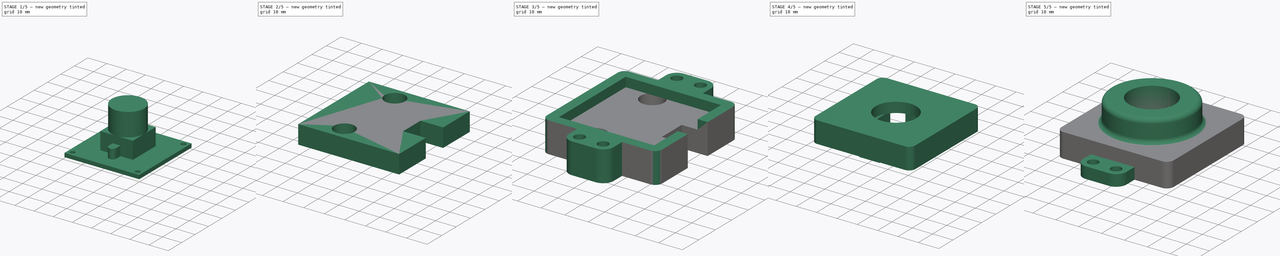
[diagram: build sequence overview — one tinted view per stage of 5, left to right]
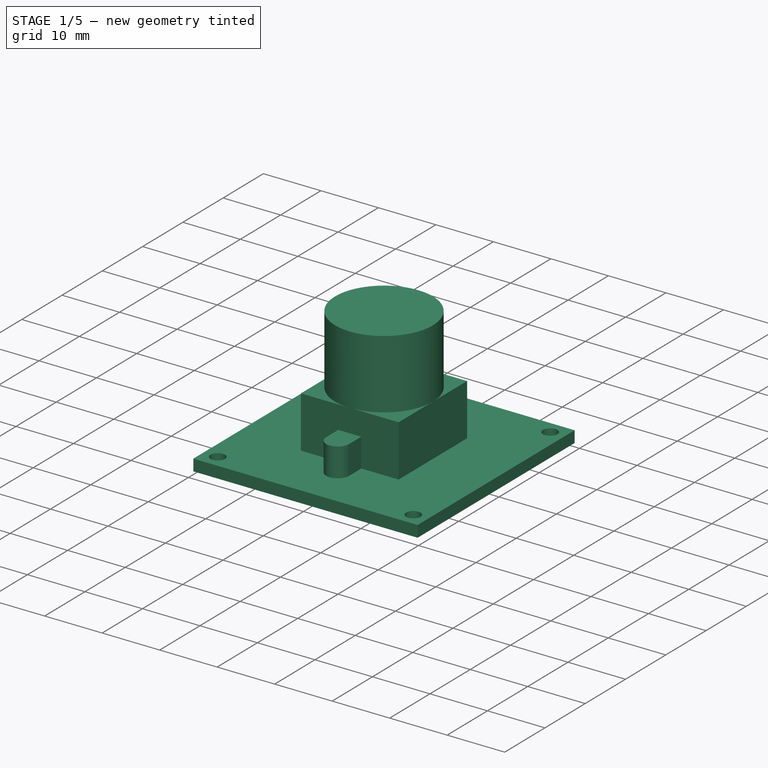
[diagram: stage 1 of 5 — iso view after this stage's code; geometry added in this stage tinted green]
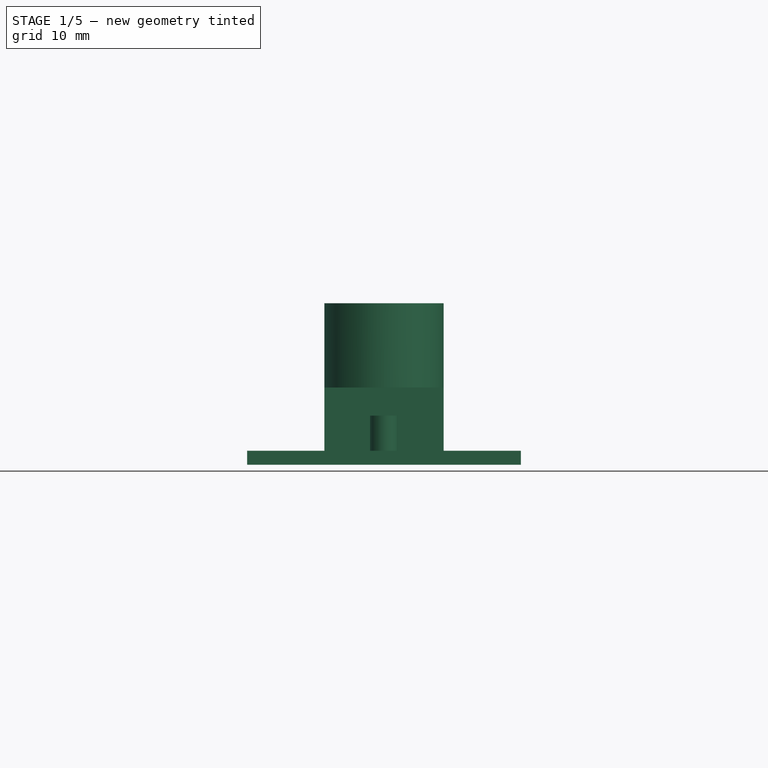
[diagram: stage 1 of 5 — front view after this stage's code; geometry added in this stage tinted green]
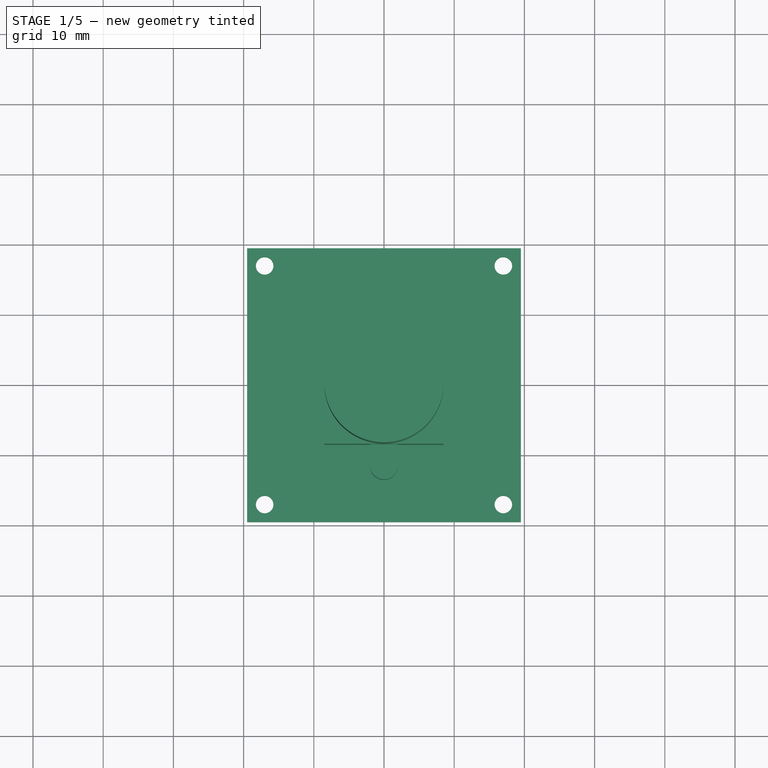
[diagram: stage 1 of 5 — top view after this stage's code; geometry added in this stage tinted green]
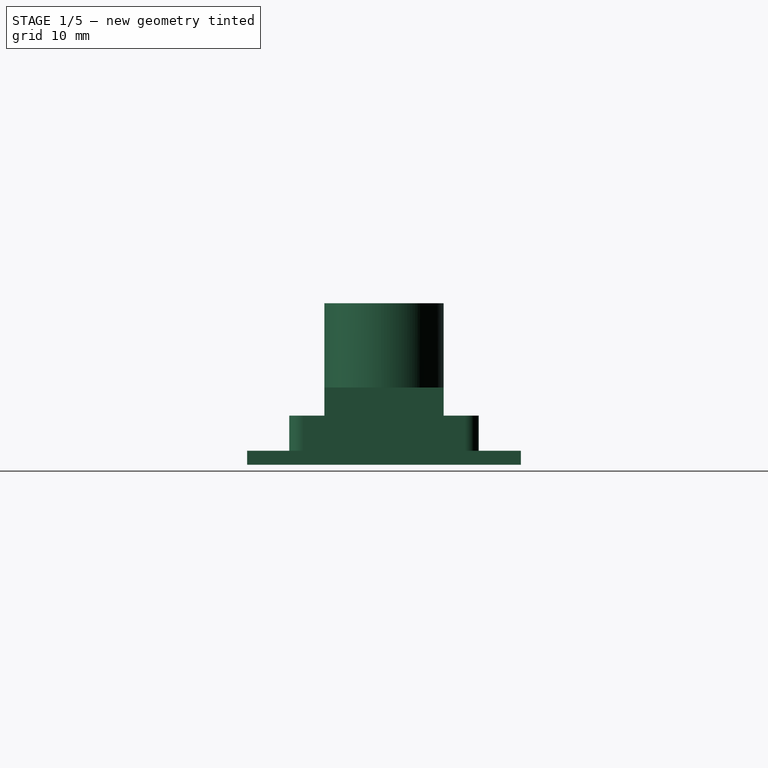
[diagram: stage 1 of 5 — right view after this stage's code; geometry added in this stage tinted green]
FCSTD DOCUMENT  (FreeCAD 1.1R39747 (Git))
Label: camera-mount
License: All rights reserved
LicenseURL: https://en.wikipedia.org/wiki/All_rights_reserved
objects: Sketcher::SketchObject×18, PartDesign::Pad×14, App::Point×7, PartDesign::Mirrored×6, Part::LocalCoordinateSystem×3, PartDesign::SubShapeBinder×3, PartDesign::Body×3, PartDesign::Revolution×1, PartDesign::SubtractivePipe×1, PartDesign::AdditivePipe×1, PartDesign::Pocket×1, PartDesign::MultiTransform×1, App::Part×1
note: 110 computed .brp shape members not serialized (recipe doc carries the construction recipe); baked Part::Feature solids carry a one-line shape summary decoded from their .brp
EXTERNAL_REF file=AssemblyWBAssembly.FCStd obj=Assembly

FEATURE [App::Point] Origin001
  Role = Origin
FEATURE [Sketcher::SketchObject] Sketch
  ArcFitTolerance = 1e-06
  AttachmentSupport = -> [XY_Plane]
  ExternalTypes = [0]
  FullyConstrained = true
  MakeInternals = false
  MapMode = 5
  sketch-geometry (14):
    g0: LineSegment StartX=-19.5 StartY=19.5 StartZ=0 EndX=-19.5 EndY=-19.5 EndZ=0
    g1: LineSegment StartX=-19.5 StartY=-19.5 StartZ=0 EndX=19.5 EndY=-19.5 EndZ=0
    g2: LineSegment StartX=19.5 StartY=-19.5 StartZ=0 EndX=19.5 EndY=19.5 EndZ=0
    g3: LineSegment StartX=19.5 StartY=19.5 StartZ=0 EndX=-19.5 EndY=19.5 EndZ=0
    g4: GeomPoint [constr] X=0 Y=0 Z=0
    g5: LineSegment [constr] StartX=-17 StartY=-17 StartZ=0 EndX=17 EndY=-17 EndZ=0
    g6: LineSegment [constr] StartX=17 StartY=-17 StartZ=0 EndX=17 EndY=17 EndZ=0
    g7: LineSegment [constr] StartX=17 StartY=17 StartZ=0 EndX=-17 EndY=17 EndZ=0
    g8: LineSegment [constr] StartX=-17 StartY=17 StartZ=0 EndX=-17 EndY=-17 EndZ=0
    g9: GeomPoint [constr] X=0 Y=0 Z=0
    g10: Circle CenterX=17 CenterY=17 CenterZ=0 NormalX=0 NormalY=0 NormalZ=1 AngleXU=0 Radius=1.25
    g11: Circle CenterX=17 CenterY=-17 CenterZ=0 NormalX=0 NormalY=0 NormalZ=1 AngleXU=0 Radius=1.25
    g12: Circle CenterX=-17 CenterY=-17 CenterZ=0 NormalX=0 NormalY=0 NormalZ=1 AngleXU=0 Radius=1.25
    g13: Circle CenterX=-17 CenterY=17 CenterZ=0 NormalX=0 NormalY=0 NormalZ=1 AngleXU=0 Radius=1.25
  constraints (32):
    c: Coincident(g0,g1)
    c: Coincident(g1,g2)
    c: Coincident(g2,g3)
    c: Coincident(g3,g0)
    c: Vertical(g0)
    c: Vertical(g2)
    c: Horizontal(g1)
    c: Horizontal(g3)
    c: Symmetric(g2,g0,g4)
    c: Distance(g0,g2) = 39
    c: Coincident(g4,g-1)
    c: Equal(g2,g1)
    c: Coincident(g5,g6)
    c: Coincident(g6,g7)
    c: Coincident(g7,g8)
    c: Coincident(g8,g5)
    c: Horizontal(g5)
    c: Horizontal(g7)
    c: Vertical(g6)
    c: Vertical(g8)
    c: Symmetric(g7,g5,g9)
    c: Coincident(g9,g4)
    c: DistanceY(g6,g6) = 34
    c: Equal(g7,g6)
    c: Diameter(g10) = 2.5
    c: Coincident(g10,g6)
    c: Coincident(g11,g5)
    c: Coincident(g12,g5)
    c: Coincident(g13,g7)
    c: Equal(g13,g12)
    c: Equal(g12,g11)
    c: Equal(g11,g10)
FEATURE [PartDesign::Pad] Pad
  Direction = (0,0,1)
  Length = 2
  Length2 = 10
  Profile = -> Sketch
  ReferenceAxis = -> Sketch [N_Axis]
  Refine = true
  Suppressed = false
  Type = 0
FEATURE [Sketcher::SketchObject] Sketch001
  ArcFitTolerance = 1e-06
  AttachmentSupport = -> [Pad]
  ExternalTypes = [0]
  FullyConstrained = true
  MakeInternals = false
  MapMode = 5
  Placement = pos=(0,0,2) rot=(0,0,1;0rad)
  sketch-geometry (5):
    g0: LineSegment StartX=-8.5 StartY=-8.5 StartZ=0 EndX=8.5 EndY=-8.5 EndZ=0
    g1: LineSegment StartX=8.5 StartY=-8.5 StartZ=0 EndX=8.5 EndY=8.5 EndZ=0
    g2: LineSegment StartX=8.5 StartY=8.5 StartZ=0 EndX=-8.5 EndY=8.5 EndZ=0
    g3: LineSegment StartX=-8.5 StartY=8.5 StartZ=0 EndX=-8.5 EndY=-8.5 EndZ=0
    g4: GeomPoint [constr] X=0 Y=0 Z=0
  constraints (12):
    c: Coincident(g0,g1)
    c: Coincident(g1,g2)
    c: Coincident(g2,g3)
    c: Coincident(g3,g0)
    c: Horizontal(g0)
    c: Horizontal(g2)
    c: Vertical(g1)
    c: Vertical(g3)
    c: Symmetric(g2,g0,g4)
    c: Coincident(g4,g-1)
    c: DistanceY(g1,g1) = 17
    c: Equal(g1,g0)
FEATURE [PartDesign::Pad] Pad001
  BaseFeature = -> Pad
  Direction = (0,0,1)
  Length = 9
  Length2 = 10
  Profile = -> Sketch001
  ReferenceAxis = -> Sketch001 [N_Axis]
  Refine = true
  Suppressed = false
  Type = 0
FEATURE [Sketcher::SketchObject] Sketch002
  ArcFitTolerance = 1e-06
  AttachmentSupport = -> [Pad001]
  ExternalGeometry = -> [Pad001]
  ExternalTypes = [0]
  FullyConstrained = true
  MakeInternals = false
  MapMode = 5
  Placement = pos=(0,0,2) rot=(0,0,1;0rad)
  sketch-geometry (6):
    g0: GeomPoint [constr] X=0 Y=-8.5 Z=0
    g1: LineSegment StartX=-2 StartY=-8.5 StartZ=0 EndX=2 EndY=-8.5 EndZ=0
    g2: LineSegment [constr] StartX=1.62e-14 StartY=-8.5 StartZ=0 EndX=1.62e-14 EndY=-13.5 EndZ=0
    g3: ArcOfCircle CenterX=4.25e-14 CenterY=-11.5 CenterZ=0 NormalX=0 NormalY=0 NormalZ=1 AngleXU=0 Radius=2 StartAngle=3.14159 EndAngle=6.28319
    g4: LineSegment StartX=-2 StartY=-11.5 StartZ=0 EndX=-2 EndY=-8.5 EndZ=0
    g5: LineSegment StartX=2 StartY=-11.5 StartZ=0 EndX=2 EndY=-8.5 EndZ=0
  constraints (16):
    c: Symmetric(g-3,g-3,g0)
    c: Horizontal(g1)
    c: Distance(g1,g1) = 4
    c: Distance(g2) = 5
    c: Symmetric(g1,g1,g2)
    c: Vertical(g2)
    c: PointOnObject(g2,g3)
    c: Horizontal(g3,g3)
    c: Horizontal(g3,g3)
    c: Vertical(g3,g1)
    c: Vertical(g3,g1)
    c: Coincident(g4,g3)
    c: Coincident(g4,g1)
    c: Coincident(g5,g3)
    c: Coincident(g5,g1)
    c: Symmetric(g-3,g-3,g2)
FEATURE [PartDesign::Pad] Pad002
  BaseFeature = -> Pad001
  Direction = (0,0,1)
  Length = 5
  Length2 = 10
  Profile = -> Sketch002
  ReferenceAxis = -> Sketch002 [N_Axis]
  Refine = true
  Suppressed = false
  Type = 0
FEATURE [PartDesign::Mirrored] Mirrored
  BaseFeature = -> Pad002
  MirrorPlane = -> Sketch002 [H_Axis]
  Originals = -> [Pad002]
  Refine = true
  Suppressed = false
  TransformMode = 0
FEATURE [Sketcher::SketchObject] Sketch003
  ArcFitTolerance = 1e-06
  AttachmentSupport = -> [Mirrored]
  ExternalGeometry = -> [Mirrored]
  ExternalTypes = [0]
  FullyConstrained = true
  MakeInternals = false
  MapMode = 5
  Placement = pos=(0,0,11) rot=(0,0,1;0rad)
  sketch-geometry (1):
    g0: Circle CenterX=4.265e-13 CenterY=0 CenterZ=0 NormalX=0 NormalY=0 NormalZ=1 AngleXU=0 Radius=8.5
  constraints (2):
    c: Coincident(g0,g-1)
    c: Tangent(g0,g-3)
FEATURE [PartDesign::Pad] Pad003
  BaseFeature = -> Mirrored
  Direction = (0,0,1)
  Length = 12
  Length2 = 10
  Profile = -> Sketch003
  ReferenceAxis = -> Sketch003 [N_Axis]
  Refine = true
  Suppressed = false
  Type = 0
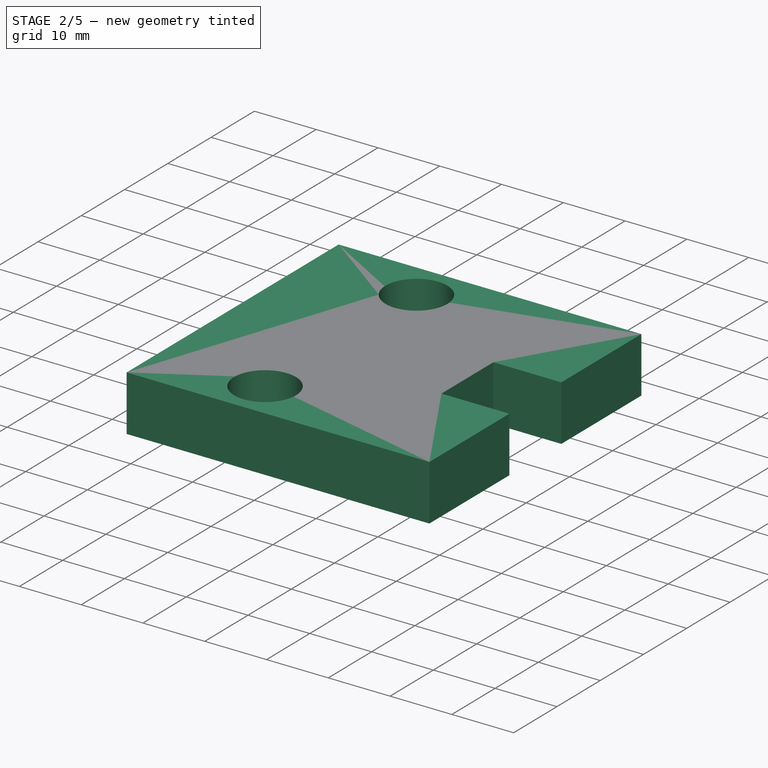
[diagram: stage 2 of 5 — iso view after this stage's code; geometry added in this stage tinted green]
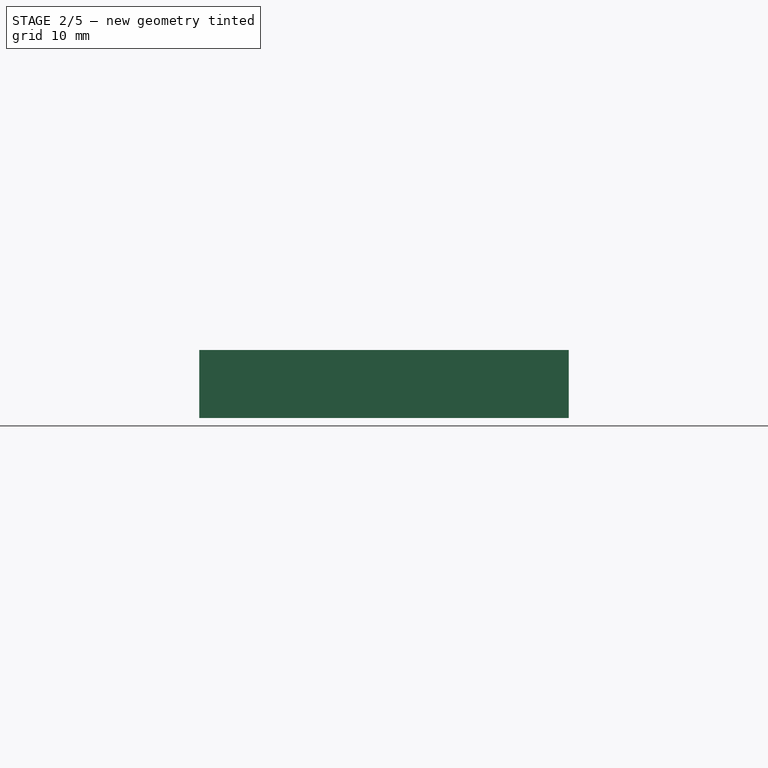
[diagram: stage 2 of 5 — front view after this stage's code; geometry added in this stage tinted green]
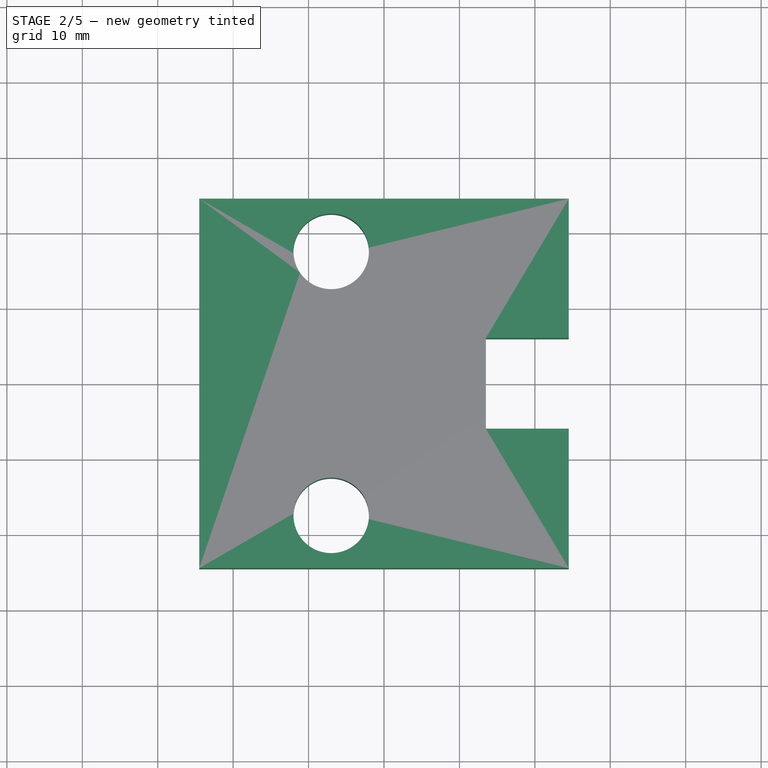
[diagram: stage 2 of 5 — top view after this stage's code; geometry added in this stage tinted green]
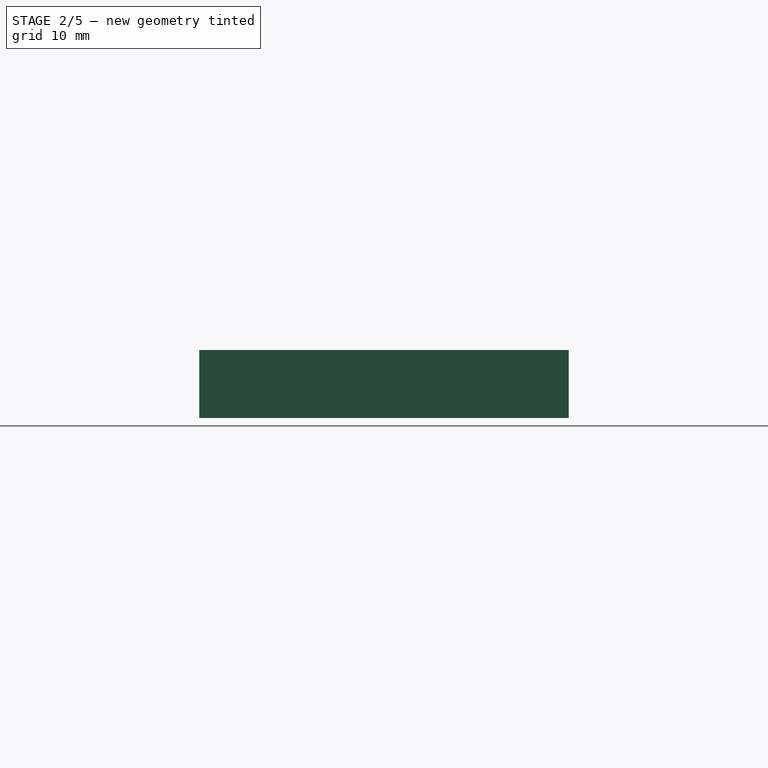
[diagram: stage 2 of 5 — right view after this stage's code; geometry added in this stage tinted green]
FEATURE [Sketcher::SketchObject] Sketch004
  ArcFitTolerance = 1e-06
  AttachmentSupport = -> [Pad003]
  ExternalTypes = [0]
  FullyConstrained = true
  MakeInternals = false
  MapMode = 5
  Placement = pos=(0,0,23) rot=(0,0,1;0rad)
  sketch-geometry (1):
    g0: Circle CenterX=0 CenterY=0 CenterZ=0 NormalX=0 NormalY=0 NormalZ=1 AngleXU=0 Radius=9.5
  constraints (2):
    c: Diameter(g0) = 19
    c: Coincident(g0,g-1)
FEATURE [PartDesign::Pad] Pad004
  BaseFeature = -> Pad003
  Direction = (0,0,1)
  Length = 5
  Length2 = 10
  Profile = -> Sketch004
  ReferenceAxis = -> Sketch004 [N_Axis]
  Refine = true
  Suppressed = false
  Type = 0
FEATURE [App::Point] Origin002
  Role = Origin
FEATURE [Part::LocalCoordinateSystem] LCS
  AttacherType = Attacher::AttachEngine3D
  AttachmentSupport = -> [Pad004]
  MapMode = 11
  OriginFeatures = -> [X_Axis001,Y_Axis001,Z_Axis001,XY_Plane001,XZ_Plane001,YZ_Plane001,Origin002]
  Placement = pos=(0,0,28) rot=(0,0,1;1.5708rad)
FEATURE [Sketcher::SketchObject] Sketch005
  ArcFitTolerance = 1e-06
  AttachmentSupport = -> [YZ_Plane001]
  ExternalGeometry = -> [Pad004]
  ExternalTypes = [0]
  FullyConstrained = true
  MakeInternals = false
  MapMode = 5
  Placement = pos=(0,0,0) rot=(0.57735,0.57735,0.57735;2.0944rad)
  sketch-geometry (3):
    g0: ArcOfCircle CenterX=0 CenterY=18.8333 CenterZ=0 NormalX=0 NormalY=0 NormalZ=1 AngleXU=0 Radius=12.1667 StartAngle=1.5708 EndAngle=2.28834
    g1: LineSegment StartX=7e-16 StartY=31 StartZ=0 EndX=-5.766e-13 EndY=28 EndZ=0
    g2: LineSegment StartX=-5.766e-13 StartY=28 StartZ=0 EndX=-8 EndY=28 EndZ=0
  constraints (10):
    c: PointOnObject(g0,g-3)
    c: PointOnObject(g0,g-2)
    c: Distance(g0,g-3) = 3
    c: Distance(g0,g-2) = 8
    c: PointOnObject(g0,g-2)
    c: Coincident(g0,g1)
    c: Coincident(g1,g2)
    c: Coincident(g2,g0)
    c: Horizontal(g2)
    c: PointOnObject(g1,g-2)
FEATURE [PartDesign::Revolution] Revolution
  Angle = 360
  Angle2 = 60
  Axis = (0,0,1)
  Base = (0,0,0)
  BaseFeature = -> Pad004
  Profile = -> Sketch005
  ReferenceAxis = -> Sketch005 [V_Axis]
  Refine = true
  Suppressed = false
  Type = 0
FEATURE [App::Point] Origin004
  Role = Origin
FEATURE [PartDesign::SubShapeBinder] Binder
  BindCopyOnChange = 0
  BindMode = 0
  ClaimChildren = false
  Context = -> <external AssemblyWBAssembly.FCStd>#Assembly [Link010.Body001.Binder.]
  Fuse = false
  MakeFace = true
  OffsetFill = false
  OffsetIntersection = false
  OffsetJoinType = 0
  OffsetOpenResult = false
  PartialLoad = false
  Refine = true
  Relative = true
  Support = -> [Body]
  _Version = 2
FEATURE [Sketcher::SketchObject] Sketch006
  ArcFitTolerance = 1e-06
  AttachmentSupport = -> [Binder]
  ExternalGeometry = -> [Binder]
  ExternalTypes = [0,0,0]
  FullyConstrained = true
  MakeInternals = false
  MapMode = 5
  Placement = pos=(0,0,0) rot=(1,0,0;3.14159rad)
  sketch-geometry (17):
    g0: LineSegment StartX=-24.5 StartY=-24.5 StartZ=0 EndX=24.5 EndY=-24.5 EndZ=0
    g1: LineSegment StartX=24.5 StartY=-24.5 StartZ=0 EndX=24.5 EndY=-6 EndZ=0
    g2: LineSegment StartX=24.5 StartY=24.5 StartZ=0 EndX=-24.5 EndY=24.5 EndZ=0
    g3: LineSegment StartX=-24.5 StartY=24.5 StartZ=0 EndX=-24.5 EndY=-24.5 EndZ=0
    g4: GeomPoint [constr] X=-9.6e-15 Y=-2.69e-14 Z=0
    g5: LineSegment StartX=13.5 StartY=-6 StartZ=0 EndX=24.5 EndY=-6 EndZ=0
    g6: LineSegment StartX=24.5 StartY=6 StartZ=0 EndX=13.5 EndY=6 EndZ=0
    g7: LineSegment StartX=13.5 StartY=6 StartZ=0 EndX=13.5 EndY=-6 EndZ=0
    g8: GeomPoint [constr] X=17 Y=-7.72e-14 Z=0
    g9: LineSegment [constr] StartX=14.5 StartY=-5 StartZ=0 EndX=13.5 EndY=-5 EndZ=0
    g10: LineSegment [constr] StartX=14.5 StartY=-5 StartZ=0 EndX=14.5 EndY=-6 EndZ=0
    g11: GeomPoint X=13.5 Y=0 Z=0
    g12: LineSegment StartX=24.5 StartY=6 StartZ=0 EndX=24.5 EndY=24.5 EndZ=0
    g13: LineSegment [constr] StartX=-7 StartY=-17.5 StartZ=0 EndX=-7 EndY=17.5 EndZ=0
    g14: GeomPoint [constr] X=-7 Y=0 Z=0
    g15: Circle CenterX=-7 CenterY=17.5 CenterZ=0 NormalX=0 NormalY=0 NormalZ=1 AngleXU=0 Radius=5
    g16: Circle CenterX=-7 CenterY=-17.5 CenterZ=0 NormalX=0 NormalY=0 NormalZ=1 AngleXU=0 Radius=5
  constraints (41):
    c: Coincident(g0,g1)
    c: Coincident(g12,g2)
    c: Coincident(g2,g3)
    c: Coincident(g3,g0)
    c: Horizontal(g0)
    c: Horizontal(g2)
    c: Vertical(g3)
    c: Symmetric(g2,g0,g4)
    c: Coincident(g4,g-1)
    c: Distance(g-3,g2) = 5
    c: Coincident(g6,g7)
    c: Coincident(g7,g5)
    c: Horizontal(g5)
    c: Horizontal(g6)
    c: Vertical(g7)
    c: Symmetric(g-5,g-4,g8)
    c: DistanceY(g-4,g6) = 1
    c: Coincident(g9,g-5)
    c: PointOnObject(g9,g7)
    c: Horizontal(g9)
    c: Coincident(g10,g9)
    c: PointOnObject(g10,g5)
    c: Vertical(g10)
    c: Equal(g10,g9)
    c: Symmetric(g7,g7,g11)
    c: PointOnObject(g11,g-1)
    c: Vertical(g1)
    c: Vertical(g12)
    c: Coincident(g5,g1)
    c: Coincident(g6,g12)
    c: Vertical(g1,g6)
    c: Equal(g2,g3)
    c: Vertical(g13)
    c: Symmetric(g13,g13,g14)
    c: PointOnObject(g14,g-1)
    c: DistanceY(g13,g13) = 35
    c: Distance(g3,g13) = 17.5
    c: Diameter(g15) = 10
    c: Coincident(g15,g13)
    c: Coincident(g16,g13)
    c: Equal(g15,g16)
FEATURE [PartDesign::Pad] Pad005
  Direction = (0,0,-1)
  Length = 9
  Length2 = 10
  Profile = -> Sketch006
  ReferenceAxis = -> Sketch006 [N_Axis]
  Refine = true
  Suppressed = false
  Type = 0
FEATURE [Sketcher::SketchObject] Sketch008
  ArcFitTolerance = 1e-06
  AttachmentSupport = -> [Revolution]
  ExternalGeometry = -> [Revolution]
  ExternalTypes = [0]
  FullyConstrained = true
  MakeInternals = false
  MapMode = 5
  Placement = pos=(0,0,0) rot=(1,0,0;3.14159rad)
  sketch-geometry (5):
    g0: GeomPoint [constr] X=19.5 Y=-4.3e-14 Z=0
    g1: LineSegment StartX=19.5 StartY=5 StartZ=0 EndX=19.5 EndY=-5 EndZ=0
    g2: LineSegment StartX=19.5 StartY=-5 StartZ=0 EndX=14.5 EndY=-5 EndZ=0
    g3: LineSegment StartX=14.5 StartY=-5 StartZ=0 EndX=14.5 EndY=5 EndZ=0
    g4: LineSegment StartX=14.5 StartY=5 StartZ=0 EndX=19.5 EndY=5 EndZ=0
  constraints (12):
    c: Symmetric(g-3,g-3,g0)
    c: DistanceY(g1,g1) = 10
    c: Vertical(g1)
    c: Symmetric(g1,g1,g0)
    c: Distance(g2) = 5
    c: Coincident(g2,g1)
    c: Horizontal(g2)
    c: Coincident(g2,g3)
    c: Vertical(g3)
    c: Coincident(g3,g4)
    c: Coincident(g4,g1)
    c: Horizontal(g4)
FEATURE [PartDesign::Pad] Pad007
  BaseFeature = -> Revolution
  Direction = (0,0,-1)
  Length = 5
  Length2 = 10
  Profile = -> Sketch008
  ReferenceAxis = -> Sketch008 [N_Axis]
  Refine = true
  Suppressed = false
  Type = 0
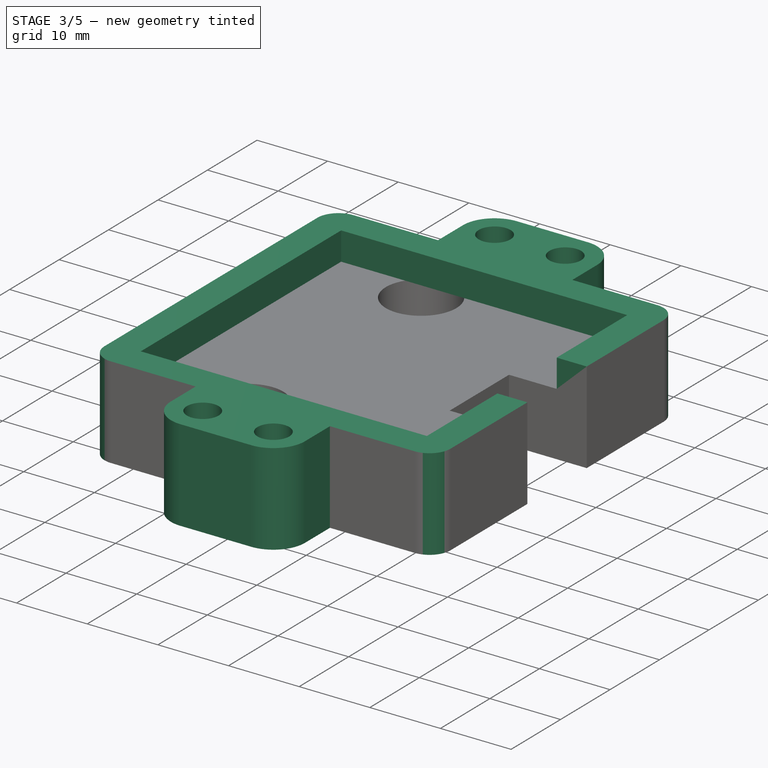
[diagram: stage 3 of 5 — iso view after this stage's code; geometry added in this stage tinted green]
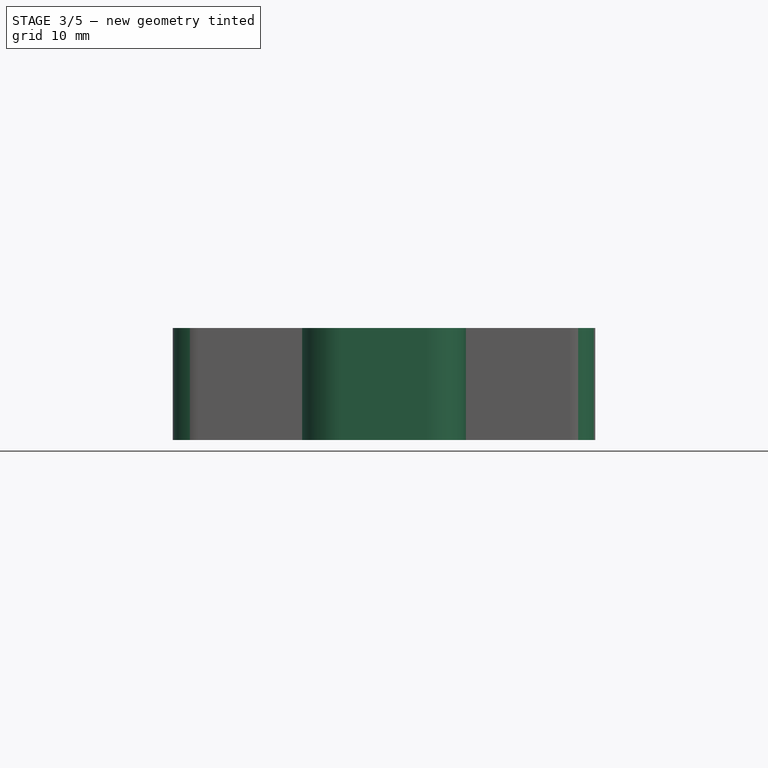
[diagram: stage 3 of 5 — front view after this stage's code; geometry added in this stage tinted green]
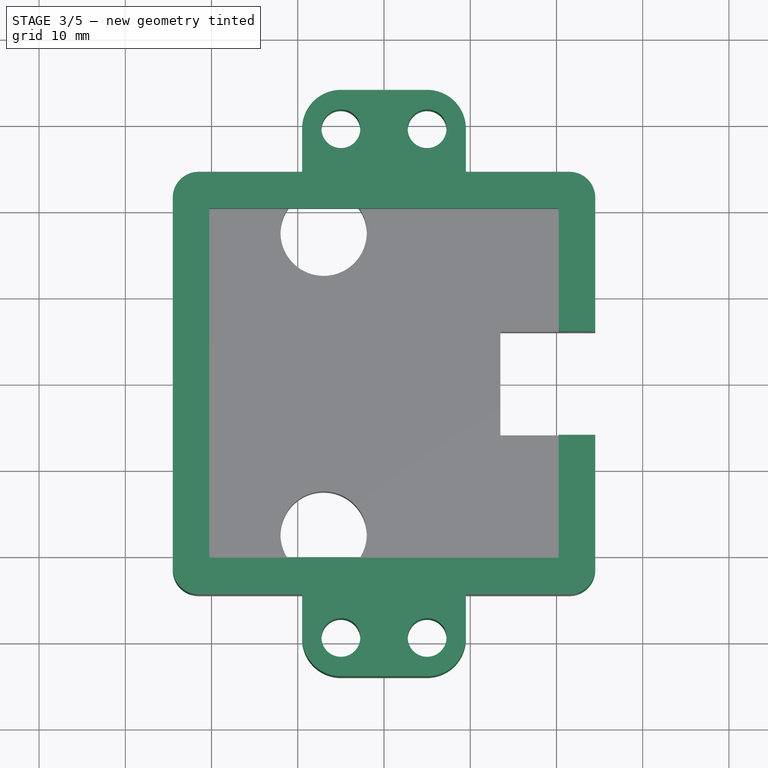
[diagram: stage 3 of 5 — top view after this stage's code; geometry added in this stage tinted green]
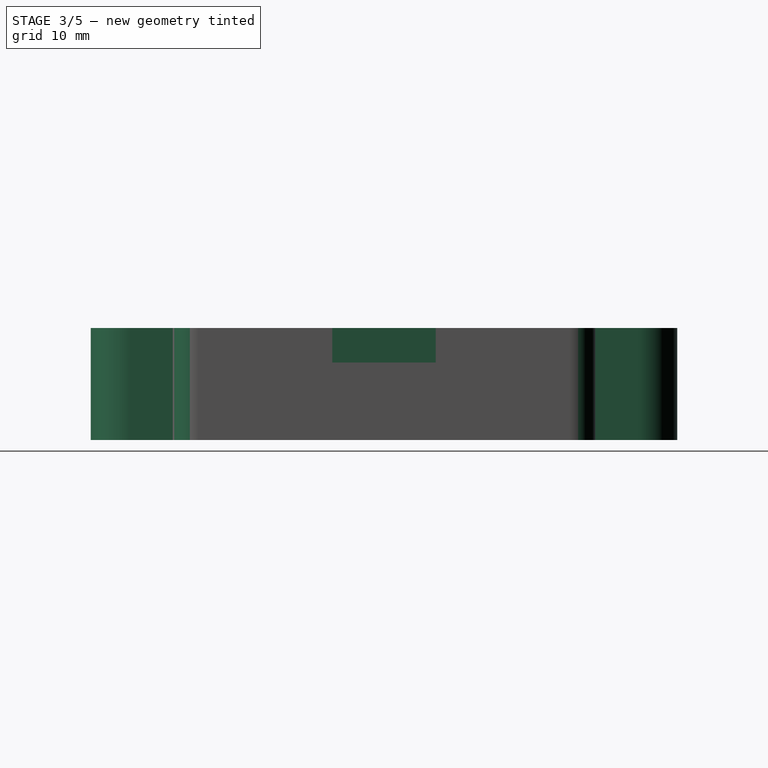
[diagram: stage 3 of 5 — right view after this stage's code; geometry added in this stage tinted green]
FEATURE [Sketcher::SketchObject] Sketch007
  ArcFitTolerance = 1e-06
  AttachmentSupport = -> [Pad005]
  ExternalGeometry = -> [Pad005,Binder]
  ExternalTypes = [0,0,0,0,0]
  FullyConstrained = true
  MakeInternals = false
  MapMode = 5
  sketch-geometry (12):
    g0: LineSegment StartX=-20.25 StartY=20.25 StartZ=0 EndX=-20.25 EndY=-20.25 EndZ=0
    g1: LineSegment StartX=-20.25 StartY=-20.25 StartZ=0 EndX=20.25 EndY=-20.25 EndZ=0
    g2: LineSegment StartX=20.25 StartY=-20.25 StartZ=0 EndX=20.25 EndY=-6 EndZ=0
    g3: LineSegment StartX=20.25 StartY=20.25 StartZ=0 EndX=-20.25 EndY=20.25 EndZ=0
    g4: GeomPoint [constr] X=0 Y=0 Z=0
    g5: LineSegment StartX=20.25 StartY=6 StartZ=0 EndX=20.25 EndY=20.25 EndZ=0
    g6: LineSegment [constr] StartX=19.5 StartY=19.5 StartZ=0 EndX=20.25 EndY=19.5 EndZ=0
    g7: LineSegment [constr] StartX=19.5 StartY=19.5 StartZ=0 EndX=19.5 EndY=20.25 EndZ=0
    g8: LineSegment StartX=20.25 StartY=-6 StartZ=0 EndX=24.5 EndY=-6 EndZ=0
    g9: LineSegment StartX=20.25 StartY=6 StartZ=0 EndX=24.5 EndY=6 EndZ=0
    g10: LineSegment StartX=24.5 StartY=6 StartZ=0 EndX=24.5 EndY=24.5 EndZ=0
    g11: LineSegment StartX=24.5 StartY=-6 StartZ=0 EndX=24.5 EndY=-24.5 EndZ=0
  constraints (32):
    c: Coincident(g0,g1)
    c: Coincident(g1,g2)
    c: Coincident(g5,g3)
    c: Coincident(g3,g0)
    c: Vertical(g0)
    c: Horizontal(g1)
    c: Horizontal(g3)
    c: Symmetric(g2,g0,g4)
    c: Coincident(g4,g-1)
    c: Distance(g2,g-6) = 0.75
    c: Vertical(g2)
    c: Vertical(g5)
    c: Coincident(g6,g-6)
    c: PointOnObject(g6,g5)
    c: Horizontal(g6)
    c: Coincident(g7,g6)
    c: PointOnObject(g7,g3)
    c: Vertical(g7)
    c: Equal(g6,g7)
    c: Vertical(g5,g2)
    c: Coincident(g8,g2)
    c: Horizontal(g8)
    c: Coincident(g9,g5)
    c: Horizontal(g9)
    c: Coincident(g10,g9)
    c: Coincident(g10,g-3)
    c: Vertical(g10)
    c: Horizontal(g5,g-7)
    c: Horizontal(g2,g-7)
    c: Coincident(g11,g8)
    c: Vertical(g11)
    c: Coincident(g-5,g11)
FEATURE [PartDesign::Pad] Pad006
  BaseFeature = -> Pad005
  Direction = (0,0,1)
  Length = 4
  Length2 = 10
  Profile = -> Sketch007
  ReferenceAxis = -> Sketch007 [N_Axis]
  Refine = true
  Suppressed = false
  Type = 0
FEATURE [PartDesign::Body] Body  label="Camera"
  AllowCompound = true
  Group = -> [Sketch,Pad,Sketch001,Pad001,Sketch002,Pad002,Mirrored,Sketch003,Pad003,Sketch004,Pad004,LCS,Sketch005,Revolution,Sketch008,Pad007]
  Origin = -> Origin
  Tip = -> Pad007
FEATURE [Sketcher::SketchObject] Sketch009
  ArcFitTolerance = 1e-06
  AttachmentSupport = -> [Pad006]
  ExternalGeometry = -> [Pad006]
  ExternalTypes = [0]
  FullyConstrained = true
  MakeInternals = false
  MapMode = 5
  Placement = pos=(0,0,4) rot=(0,0,1;0rad)
  sketch-geometry (11):
    g0: GeomPoint X=-7.905e-13 Y=24.5 Z=0
    g1: LineSegment [constr] StartX=-7.905e-13 StartY=24.5 StartZ=0 EndX=-7.905e-13 EndY=29.5 EndZ=0
    g2: LineSegment [constr] StartX=-5 StartY=29.5 StartZ=0 EndX=5 EndY=29.5 EndZ=0
    g3: ArcOfCircle CenterX=-5 CenterY=29.5 CenterZ=0 NormalX=0 NormalY=0 NormalZ=1 AngleXU=0 Radius=4.5 StartAngle=1.5708 EndAngle=3.14159
    g4: LineSegment StartX=5 StartY=34 StartZ=0 EndX=-5 EndY=34 EndZ=0
    g5: LineSegment StartX=9.5 StartY=29.5 StartZ=0 EndX=9.5 EndY=24.5 EndZ=0
    g6: LineSegment StartX=-9.5 StartY=29.5 StartZ=0 EndX=-9.5 EndY=24.5 EndZ=0
    g7: ArcOfCircle CenterX=5 CenterY=29.5 CenterZ=0 NormalX=0 NormalY=0 NormalZ=1 AngleXU=0 Radius=4.5 StartAngle=0 EndAngle=1.5708
    g8: Circle CenterX=5 CenterY=29.5 CenterZ=0 NormalX=0 NormalY=0 NormalZ=1 AngleXU=0 Radius=2.25
    g9: Circle CenterX=-5 CenterY=29.5 CenterZ=0 NormalX=0 NormalY=0 NormalZ=1 AngleXU=0 Radius=2.25
    g10: LineSegment StartX=-9.5 StartY=24.5 StartZ=0 EndX=9.5 EndY=24.5 EndZ=0
  constraints (26):
    c: Coincident(g1,g0)
    c: Symmetric(g2,g2,g1)
    c: Coincident(g3,g2)
    c: Coincident(g4,g3)
    c: Coincident(g7,g2)
    c: Equal(g3,g7)
    c: Radius(g7) = 4.5
    c: Tangent(g7,g4) = -1.5708
    c: Tangent(g7,g5) = 1.5708
    c: Tangent(g3,g6) = -1.5708
    c: Diameter(g8) = 4.5
    c: Coincident(g8,g2)
    c: Coincident(g9,g2)
    c: Equal(g9,g8)
    c: Coincident(g10,g6)
    c: Coincident(g10,g5)
    c: PointOnObject(g0,g10)
    c: Vertical(g1)
    c: Horizontal(g2)
    c: Horizontal(g4)
    c: Vertical(g6)
    c: Vertical(g5)
    c: DistanceY(g1,g1) = 5
    c: Horizontal(g10)
    c: DistanceX(g2,g2) = 10
    c: Symmetric(g-3,g-3,g0)
FEATURE [PartDesign::Pad] Pad008
  BaseFeature = -> Pad006
  Direction = (0,0,1)
  Length = 10
  Length2 = 10
  Profile = -> Sketch009
  ReferenceAxis = -> Sketch009 [N_Axis]
  Refine = true
  Suppressed = false
  Type = 3
  UpToFace = -> Pad006 [Face1]
FEATURE [PartDesign::Mirrored] Mirrored001
  BaseFeature = -> Pad008
  MirrorPlane = -> Sketch009 [H_Axis]
  Originals = -> [Pad008]
  Refine = true
  Suppressed = false
  TransformMode = 0
FEATURE [PartDesign::Body] Body002  label="Camera Mount Top"
  AllowCompound = true
  Group = -> [Binder001,Binder002,LCS001,Sketch010,Pad009,Sketch012,Sketch015,Pad013,Mirrored003,Pad010,Sketch013,Pad011,Mirrored002,Sketch014,Pad012,LCS002,Sketch016,SubtractivePipe,Sketch017,AdditivePipe]
  Origin = -> Origin005
  Tip = -> AdditivePipe
FEATURE [Sketcher::SketchObject] Sketch018
  ArcFitTolerance = 1e-06
  AttachmentSupport = -> [Mirrored001]
  ExternalGeometry = -> [Mirrored001]
  ExternalTypes = [0,0]
  FullyConstrained = true
  MakeInternals = false
  MapMode = 5
  Placement = pos=(0,0,4) rot=(0,0,1;0rad)
  sketch-geometry (3):
    g0: ArcOfCircle CenterX=-21.5 CenterY=-21.5 CenterZ=0 NormalX=0 NormalY=0 NormalZ=1 AngleXU=0 Radius=3 StartAngle=3.14159 EndAngle=4.71239
    g1: LineSegment StartX=-21.5 StartY=-24.5 StartZ=0 EndX=-24.5 EndY=-24.5 EndZ=0
    g2: LineSegment StartX=-24.5 StartY=-24.5 StartZ=0 EndX=-24.5 EndY=-21.5 EndZ=0
  constraints (7):
    c: Tangent(g0,g-4) = 1.5708
    c: Tangent(g0,g-3) = 1.5708
    c: Radius(g0) = 3
    c: Coincident(g0,g1)
    c: Coincident(g1,g2)
    c: Coincident(g2,g0)
    c: Coincident(g-4,g1)
FEATURE [PartDesign::Pocket] Pocket
  BaseFeature = -> Mirrored001
  Direction = (0,0,-1)
  Length = 0
  Length2 = 5
  Profile = -> Sketch018
  ReferenceAxis = -> Sketch018 [N_Axis]
  Refine = true
  Suppressed = false
  Type = 3
  UpToFace = -> Mirrored001 [Face31]
FEATURE [PartDesign::Mirrored] Mirrored004
  MirrorPlane = -> Sketch018 [H_Axis]
  Refine = true
  Suppressed = false
  TransformMode = 0
FEATURE [PartDesign::Mirrored] Mirrored005
  MirrorPlane = -> Sketch018 [V_Axis]
  Refine = true
  Suppressed = false
  TransformMode = 0
FEATURE [PartDesign::MultiTransform] MultiTransform
  BaseFeature = -> Pocket
  Originals = -> [Pocket]
  Refine = true
  Suppressed = false
  TransformMode = 0
  Transformations = -> [Mirrored004,Mirrored005]
FEATURE [PartDesign::Body] Body001  label="Camera Mount Bottom"
  AllowCompound = true
  Group = -> [Binder,Sketch006,Pad005,Sketch007,Pad006,Sketch009,Pad008,Mirrored001,Sketch018,Pocket,MultiTransform,Mirrored004,Mirrored005]
  Origin = -> Origin003
  Tip = -> MultiTransform
FEATURE [App::Part] Part  label="Camera Mount Assembly"
  Group = -> [Body,Body001,Body002]
  Origin = -> Origin009
FEATURE [App::Point] Origin010
  Role = Origin
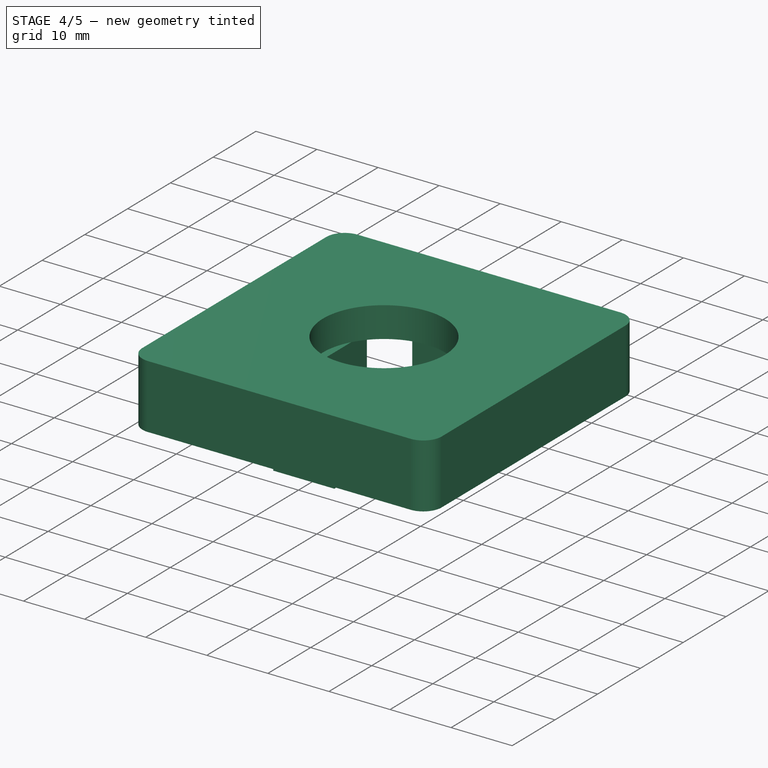
[diagram: stage 4 of 5 — iso view after this stage's code; geometry added in this stage tinted green]
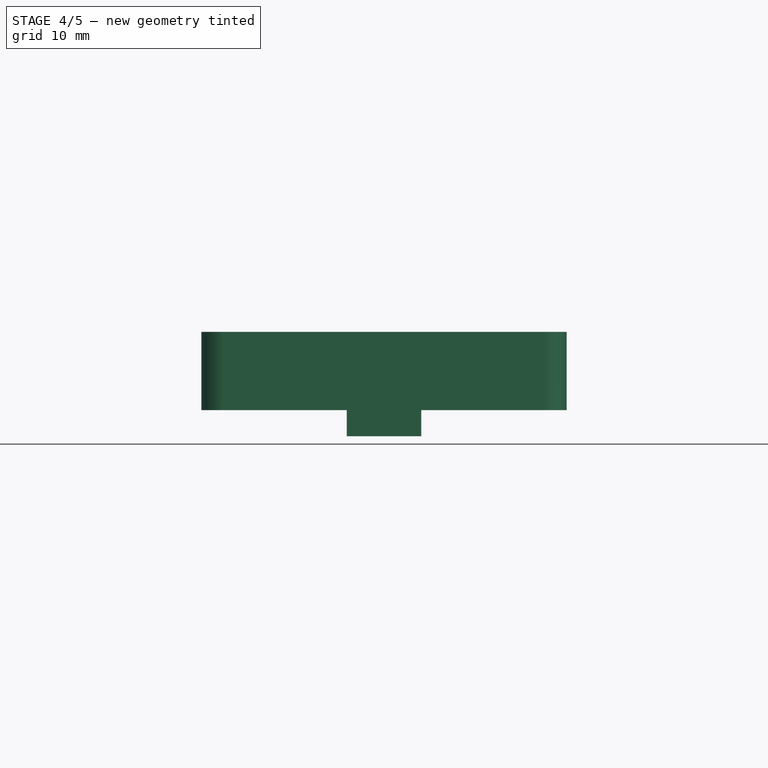
[diagram: stage 4 of 5 — front view after this stage's code; geometry added in this stage tinted green]
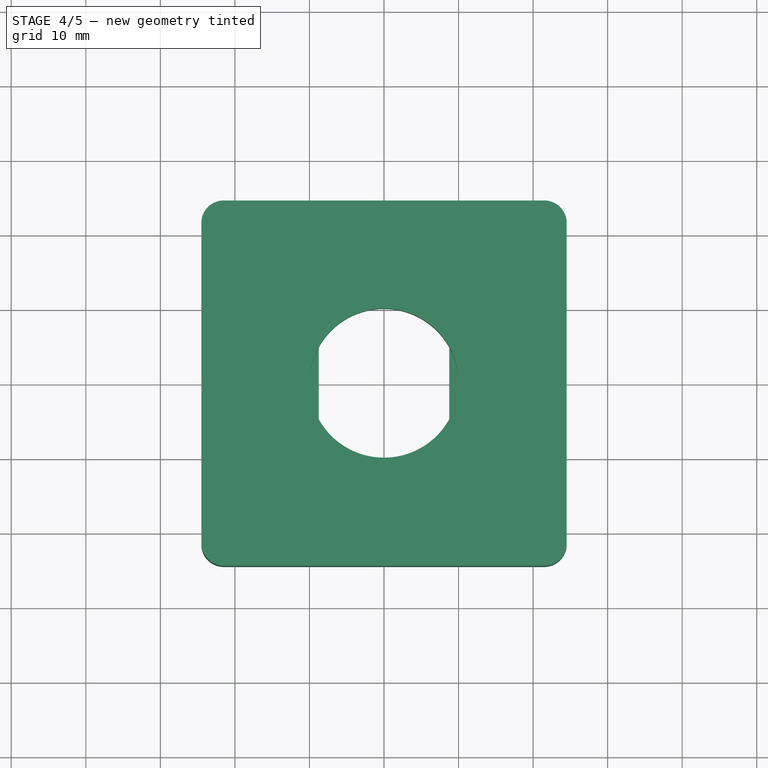
[diagram: stage 4 of 5 — top view after this stage's code; geometry added in this stage tinted green]
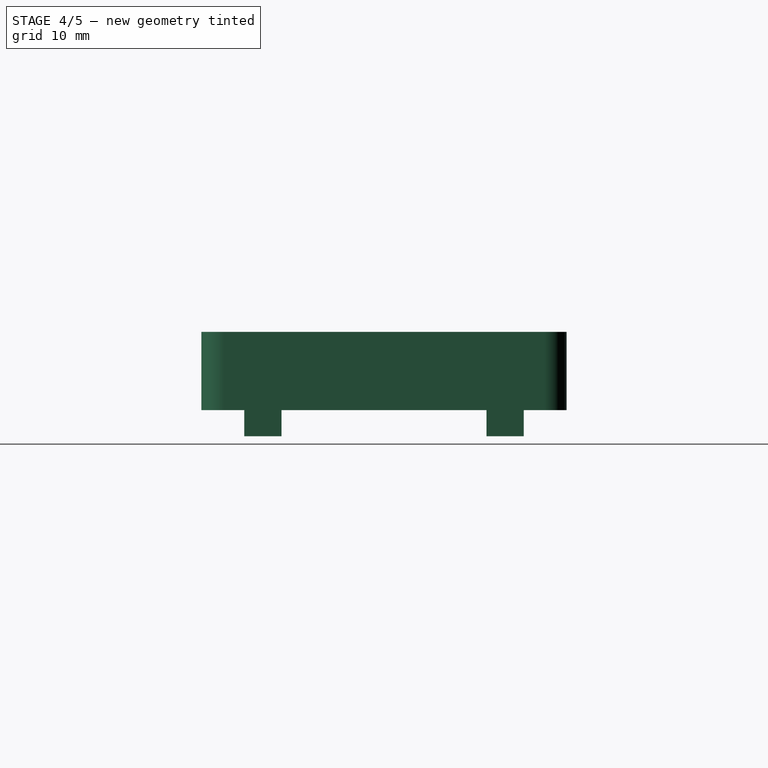
[diagram: stage 4 of 5 — right view after this stage's code; geometry added in this stage tinted green]
FEATURE [App::Point] Origin006
  Role = Origin
FEATURE [PartDesign::SubShapeBinder] Binder001
  BindCopyOnChange = 0
  BindMode = 0
  ClaimChildren = false
  Context = -> <external AssemblyWBAssembly.FCStd>#Assembly [Link010.Body002.Binder001.]
  Fuse = false
  MakeFace = true
  OffsetFill = false
  OffsetIntersection = false
  OffsetJoinType = 0
  OffsetOpenResult = false
  PartialLoad = false
  Refine = true
  Relative = true
  Support = -> [Body001]
  _Version = 2
FEATURE [PartDesign::SubShapeBinder] Binder002
  BindCopyOnChange = 0
  BindMode = 0
  ClaimChildren = false
  Context = -> <external AssemblyWBAssembly.FCStd>#Assembly [Link010.Body002.Binder002.]
  Fuse = false
  MakeFace = true
  OffsetFill = false
  OffsetIntersection = false
  OffsetJoinType = 0
  OffsetOpenResult = false
  PartialLoad = false
  Refine = true
  Relative = true
  Support = -> [Body]
  _Version = 2
FEATURE [App::Point] Origin007
  Role = Origin
FEATURE [Part::LocalCoordinateSystem] LCS001
  AttacherType = Attacher::AttachEngine3D
  AttachmentOffset = pos=(0,0,1.5) rot=(0,0,1;0rad)
  AttachmentSupport = -> [Binder001]
  MapMode = 5
  OriginFeatures = -> [X_Axis004,Y_Axis004,Z_Axis004,XY_Plane004,XZ_Plane004,YZ_Plane004,Origin007]
  Placement = pos=(0,0,5.5) rot=(0,0,1;0rad)
FEATURE [Sketcher::SketchObject] Sketch010
  ArcFitTolerance = 1e-06
  AttachmentSupport = -> [LCS001]
  ExternalGeometry = -> [Binder002,Binder001]
  ExternalTypes = [0,0,0,0,0,0,0,0,0,0,0,0,0,0,0,0,0,0,0]
  FullyConstrained = true
  MakeInternals = false
  MapMode = 5
  Placement = pos=(0,0,5.5) rot=(0,0,1;0rad)
  sketch-geometry (43):
    g0: LineSegment StartX=24.5 StartY=-6 StartZ=0 EndX=24.5 EndY=6 EndZ=0
    g1: LineSegment StartX=-9.5 StartY=24.5 StartZ=0 EndX=9.5 EndY=24.5 EndZ=0
    g2: LineSegment StartX=-9.5 StartY=-24.5 StartZ=0 EndX=9.5 EndY=-24.5 EndZ=0
    g3: LineSegment StartX=-8.75 StartY=8.5 StartZ=0 EndX=-8.75 EndY=-8.5 EndZ=0
    g4: GeomPoint X=-8.75 Y=0 Z=0
    g5: LineSegment StartX=8.75 StartY=8.5 StartZ=0 EndX=8.75 EndY=-8.5 EndZ=0
    g6: LineSegment [constr] StartX=8.5 StartY=-8.5 StartZ=0 EndX=8.75 EndY=-8.5 EndZ=0
    g7: LineSegment [constr] StartX=-8.5 StartY=-8.5 StartZ=0 EndX=-8.75 EndY=-8.5 EndZ=0
    g8: LineSegment StartX=-20.25 StartY=-8.5 StartZ=0 EndX=-20.25 EndY=-20.25 EndZ=0
    g9: LineSegment StartX=-20.25 StartY=-20.25 StartZ=0 EndX=-5 EndY=-20.25 EndZ=0
    g10: LineSegment StartX=20.25 StartY=-20.25 StartZ=0 EndX=20.25 EndY=-8.5 EndZ=0
    g11: LineSegment StartX=-20.25 StartY=8.5 StartZ=0 EndX=-20.25 EndY=20.25 EndZ=0
    g12: LineSegment StartX=-20.25 StartY=20.25 StartZ=0 EndX=-5 EndY=20.25 EndZ=0
    g13: LineSegment StartX=20.25 StartY=20.25 StartZ=0 EndX=20.25 EndY=8.5 EndZ=0
    g14: LineSegment StartX=-20.25 StartY=8.5 StartZ=0 EndX=-8.75 EndY=8.5 EndZ=0
    g15: LineSegment StartX=-20.25 StartY=-8.5 StartZ=0 EndX=-8.75 EndY=-8.5 EndZ=0
    g16: LineSegment StartX=8.75 StartY=8.5 StartZ=0 EndX=20.25 EndY=8.5 EndZ=0
    g17: LineSegment StartX=8.75 StartY=-8.5 StartZ=0 EndX=20.25 EndY=-8.5 EndZ=0
    g18: GeomPoint X=1.1e-15 Y=-20.25 Z=0
    g19: LineSegment [constr] StartX=1.1e-15 StartY=-20.25 StartZ=0 EndX=0 EndY=-13.75 EndZ=0
    g20: LineSegment StartX=-5 StartY=-13.75 StartZ=0 EndX=5 EndY=-13.75 EndZ=0
    g21: LineSegment StartX=5 StartY=-13.75 StartZ=0 EndX=5 EndY=-20.25 EndZ=0
    g22: LineSegment StartX=-5 StartY=-13.75 StartZ=0 EndX=-5 EndY=-20.25 EndZ=0
    g23: LineSegment StartX=5 StartY=-20.25 StartZ=0 EndX=20.25 EndY=-20.25 EndZ=0
    g24: GeomPoint X=-1e-16 Y=20.25 Z=0
    g25: LineSegment [constr] StartX=-1e-16 StartY=20.25 StartZ=0 EndX=0 EndY=13.75 EndZ=0
    g26: LineSegment StartX=-5 StartY=13.75 StartZ=0 EndX=5 EndY=13.75 EndZ=0
    g27: LineSegment StartX=5 StartY=13.75 StartZ=0 EndX=5 EndY=20.25 EndZ=0
    g28: LineSegment StartX=-5 StartY=13.75 StartZ=0 EndX=-5 EndY=20.25 EndZ=0
    g29: LineSegment StartX=5 StartY=20.25 StartZ=0 EndX=20.25 EndY=20.25 EndZ=0
    g30: GeomPoint [constr] X=15 Y=-7.1e-15 Z=0
    g31: LineSegment StartX=12.5 StartY=-3 StartZ=0 EndX=17.5 EndY=-3 EndZ=0
    g32: LineSegment StartX=17.5 StartY=-3 StartZ=0 EndX=17.5 EndY=3 EndZ=0
    g33: LineSegment StartX=17.5 StartY=3 StartZ=0 EndX=12.5 EndY=3 EndZ=0
    g34: LineSegment StartX=12.5 StartY=3 StartZ=0 EndX=12.5 EndY=-3 EndZ=0
    g35: GeomPoint [constr] X=15 Y=-7.1e-15 Z=0
    g36: LineSegment [constr] StartX=15 StartY=-7.1e-15 StartZ=0 EndX=8.75 EndY=-7.1e-15 EndZ=0
    g37: LineSegment [constr] StartX=-8.75 StartY=0 StartZ=0 EndX=-15 EndY=-8.33e-14 EndZ=0
    g38: LineSegment StartX=-17.5 StartY=3 StartZ=0 EndX=-17.5 EndY=-3 EndZ=0
    g39: LineSegment StartX=-17.5 StartY=-3 StartZ=0 EndX=-12.5 EndY=-3 EndZ=0
    g40: LineSegment StartX=-12.5 StartY=-3 StartZ=0 EndX=-12.5 EndY=3 EndZ=0
    g41: LineSegment StartX=-12.5 StartY=3 StartZ=0 EndX=-17.5 EndY=3 EndZ=0
    g42: GeomPoint [constr] X=-15 Y=-8.33e-14 Z=0
  constraints (105):
    c: Vertical(g3)
    c: Symmetric(g3,g3,g4)
    c: PointOnObject(g4,g-1)
    c: Horizontal(g3,g-4)
    c: Distance(g-4,g3) = 0.25
    c: Vertical(g5)
    c: Horizontal(g-3,g5)
    c: Horizontal(g5,g-3)
    c: Coincident(g6,g-3)
    c: Coincident(g6,g5)
    c: Coincident(g7,g-4)
    c: Coincident(g7,g3)
    c: Equal(g6,g7)
    c: Coincident(g8,g-8)
    c: Vertical(g8)
    c: Coincident(g8,g9)
    c: Coincident(g23,g-7)
    c: Coincident(g23,g10)
    c: Vertical(g10)
    c: Coincident(g11,g-5)
    c: Coincident(g11,g12)
    c: Vertical(g11)
    c: Vertical(g13)
    c: Coincident(g14,g11)
    c: Coincident(g14,g3)
    c: Horizontal(g14)
    c: Coincident(g15,g8)
    c: Coincident(g15,g3)
    c: Horizontal(g15)
    c: Coincident(g16,g5)
    c: Coincident(g16,g13)
    c: Horizontal(g16)
    c: Coincident(g17,g5)
    c: Coincident(g17,g10)
    c: Horizontal(g17)
    c: Symmetric(g9,g23,g18)
    c: Distance(g19) = 6.5
    c: Coincident(g19,g18)
    c: PointOnObject(g19,g-2)
    c: Distance(g20) = 10
    c: Horizontal(g20)
    c: Symmetric(g20,g20,g19)
    c: Coincident(g21,g20)
    c: Vertical(g21)
    c: Coincident(g22,g20)
    c: Vertical(g22)
    c: Coincident(g21,g23)
    c: Coincident(g22,g9)
    c: Horizontal(g9)
    c: Horizontal(g23)
    c: Symmetric(g12,g-6,g24)
    c: Coincident(g25,g24)
    c: PointOnObject(g25,g-2)
    c: Equal(g25,g19)
    c: Horizontal(g26)
    c: Symmetric(g26,g26,g25)
    c: Coincident(g27,g26)
    c: Vertical(g27)
    c: Coincident(g28,g26)
    c: Vertical(g28)
    c: Vertical(g26,g20)
    c: Coincident(g28,g12)
    c: Coincident(g29,g27)
    c: Coincident(g29,g13)
    c: Horizontal(g29)
    c: Horizontal(g12)
    c: Horizontal(g27,g12)
    c: Equal(g29,g12)
    c: Coincident(g31,g32)
    c: Coincident(g32,g33)
    c: Coincident(g33,g34)
    c: Coincident(g34,g31)
    c: Horizontal(g31)
    c: Horizontal(g33)
    c: Vertical(g32)
    c: Vertical(g34)
    c: Symmetric(g33,g31,g35)
    c: Distance(g32,g34) = 5
    c: Distance(g31,g33) = 6
    c: Coincident(g35,g30)
    c: Coincident(g36,g30)
    c: Symmetric(g5,g5,g36)
    c: Coincident(g37,g4)
    c: PointOnObject(g37,g-1)
    c: Equal(g37,g36)
    c: Coincident(g38,g39)
    c: Coincident(g39,g40)
    c: Coincident(g40,g41)
    c: Coincident(g41,g38)
    c: Vertical(g38)
    c: Vertical(g40)
    c: Horizontal(g39)
    c: Horizontal(g41)
    c: Symmetric(g40,g38,g42)
    c: Coincident(g42,g37)
    c: Equal(g40,g34)
    c: Equal(g31,g39)
    c: DistanceX(g36,g36) = 6.25
    c: Horizontal(g36)
    c: Coincident(g-19,g0)
    c: Coincident(g0,g-18)
    c: Coincident(g2,g-16)
    c: Coincident(g2,g-15)
    c: Coincident(g-11,g1)
    c: Coincident(g-21,g1)
FEATURE [PartDesign::Pad] Pad009
  Direction = (0,0,1)
  Length = 10
  Length2 = 10
  Placement = pos=(0,0,5.5) rot=(0,0,1;0rad)
  Profile = -> Sketch010
  ReferenceAxis = -> Sketch010 [N_Axis]
  Refine = true
  Suppressed = false
  Type = 3
  UpToFace = -> Binder002 [Face8]
FEATURE [Sketcher::SketchObject] Sketch015
  ArcFitTolerance = 1e-06
  AttachmentSupport = -> [Pad009]
  ExternalGeometry = -> [Pad009]
  ExternalTypes = [0,0]
  FullyConstrained = true
  MakeInternals = false
  MapMode = 5
  Placement = pos=(0,0,5.5) rot=(1,0,0;3.14159rad)
  sketch-geometry (3):
    g0: LineSegment StartX=5 StartY=13.75 StartZ=0 EndX=5 EndY=18.75 EndZ=0
    g1: LineSegment StartX=5 StartY=18.75 StartZ=0 EndX=-5 EndY=18.75 EndZ=0
    g2: LineSegment StartX=-5 StartY=18.75 StartZ=0 EndX=-5 EndY=13.75 EndZ=0
  constraints (8):
    c: Coincident(g0,g-3)
    c: Vertical(g0)
    c: Coincident(g1,g0)
    c: Horizontal(g1)
    c: Coincident(g2,g1)
    c: Coincident(g2,g-3)
    c: Vertical(g2)
    c: Distance(g-4,g1) = 1.5
FEATURE [PartDesign::Pad] Pad013
  BaseFeature = -> Pad009
  Direction = (0,0,-1)
  Length = 3.5
  Length2 = 10
  Placement = pos=(0,0,5.5) rot=(0,0,1;0rad)
  Profile = -> Sketch015
  ReferenceAxis = -> Sketch015 [N_Axis]
  Refine = true
  Suppressed = false
  Type = 0
FEATURE [Sketcher::SketchObject] Sketch012
  ArcFitTolerance = 1e-06
  AttachmentSupport = -> [Pad009]
  ExternalGeometry = -> [Pad013]
  ExternalTypes = [0,0,0,0,0,0,0,0,0,0]
  FullyConstrained = true
  MakeInternals = false
  MapMode = 5
  Placement = pos=(0,0,11) rot=(0,0,1;0rad)
  sketch-geometry (1):
    g0: Circle CenterX=0 CenterY=0 CenterZ=0 NormalX=0 NormalY=0 NormalZ=1 AngleXU=0 Radius=10
  constraints (2):
    c: Coincident(g0,g-1)
    c: Diameter(g0) = 20
FEATURE [PartDesign::Mirrored] Mirrored003
  BaseFeature = -> Pad013
  MirrorPlane = -> Sketch015 [H_Axis]
  Originals = -> [Pad013]
  Placement = pos=(0,0,5.5) rot=(0,0,1;0rad)
  Refine = true
  Suppressed = false
  TransformMode = 0
FEATURE [PartDesign::Pad] Pad010
  BaseFeature = -> Mirrored003
  Direction = (0,0,1)
  Length = 5
  Length2 = 10
  Offset = -1
  Placement = pos=(0,0,5.5) rot=(0,0,1;0rad)
  Profile = -> Sketch012
  ReferenceAxis = -> Sketch012 [N_Axis]
  Refine = true
  Suppressed = false
  Type = 0
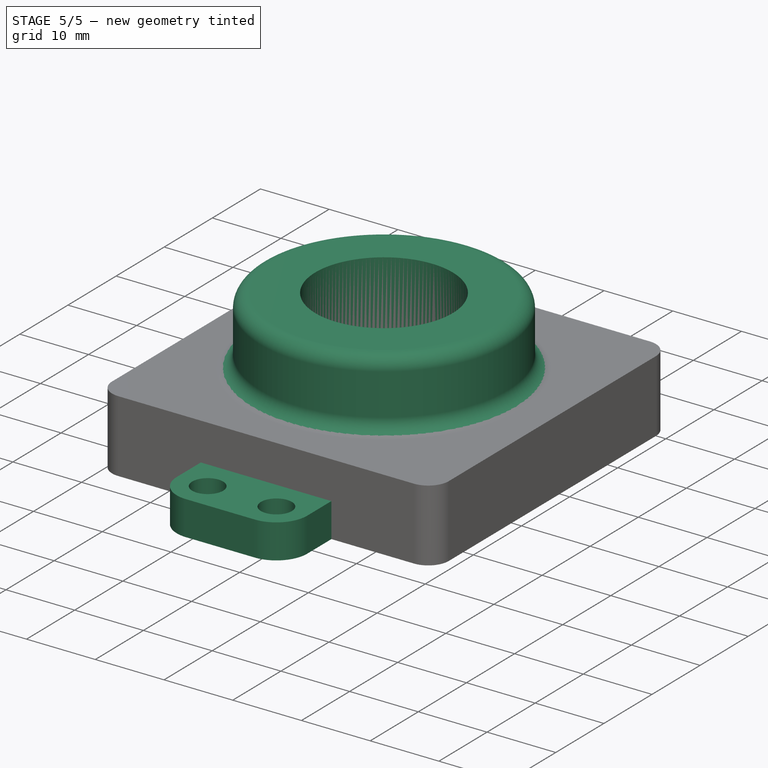
[diagram: stage 5 of 5 — iso view after this stage's code; geometry added in this stage tinted green]
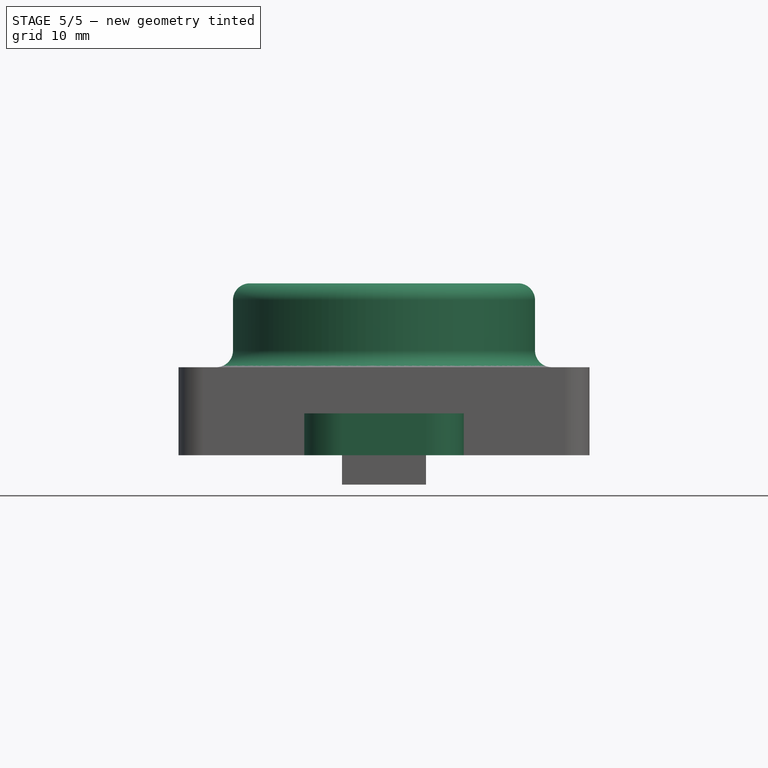
[diagram: stage 5 of 5 — front view after this stage's code; geometry added in this stage tinted green]
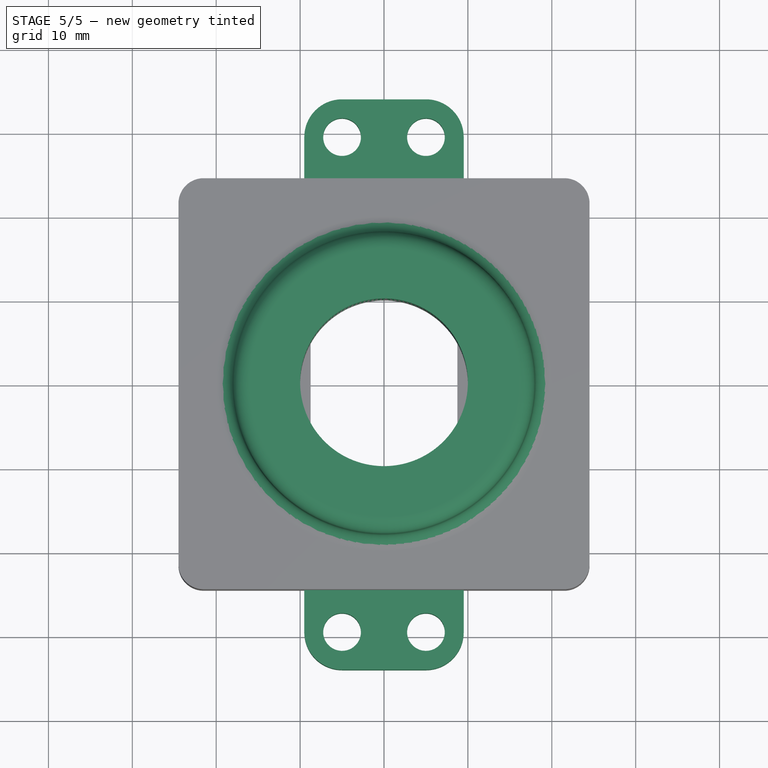
[diagram: stage 5 of 5 — top view after this stage's code; geometry added in this stage tinted green]
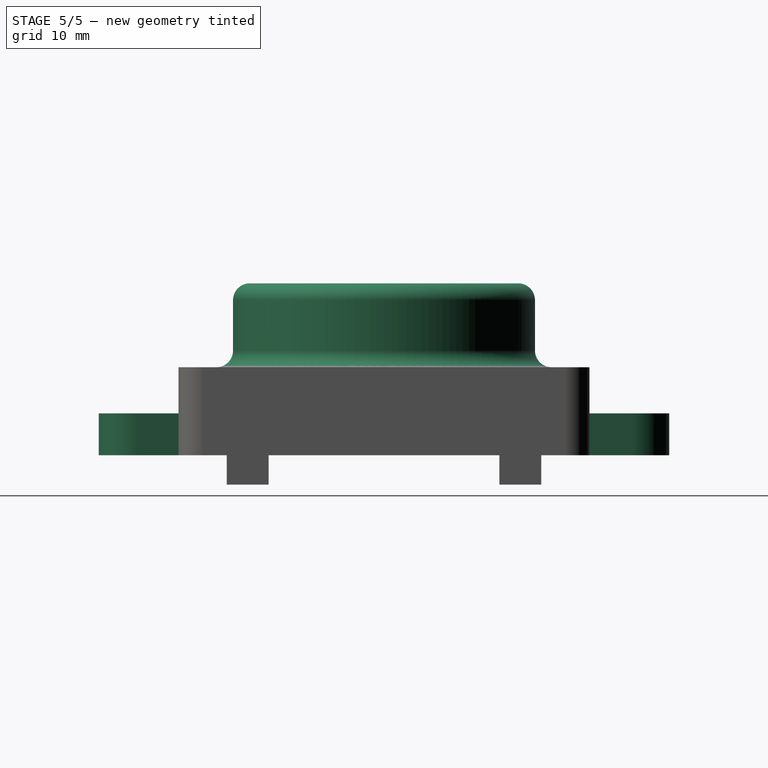
[diagram: stage 5 of 5 — right view after this stage's code; geometry added in this stage tinted green]
FEATURE [Sketcher::SketchObject] Sketch013
  ArcFitTolerance = 1e-06
  AttachmentSupport = -> [Pad010]
  ExternalGeometry = -> [Binder001]
  ExternalTypes = [0,0,0,0,0,0,0]
  FullyConstrained = true
  MakeInternals = false
  MapMode = 5
  Placement = pos=(0,0,5.5) rot=(1,0,0;3.14159rad)
  sketch-geometry (1):
    g0: LineSegment StartX=9.5 StartY=24.5 StartZ=0 EndX=-9.5 EndY=24.5 EndZ=0
  constraints (3):
    c: Coincident(g0,g-3)
    c: Horizontal(g0)
    c: PointOnObject(g0,g-7)
FEATURE [PartDesign::Pad] Pad011
  BaseFeature = -> Pad010
  Direction = (0,0,-1)
  Length = 5
  Length2 = 10
  Placement = pos=(0,0,5.5) rot=(0,0,1;0rad)
  Profile = -> Sketch013
  ReferenceAxis = -> Sketch013 [N_Axis]
  Refine = true
  Reversed = true
  Suppressed = false
  Type = 0
FEATURE [PartDesign::Mirrored] Mirrored002
  BaseFeature = -> Pad011
  MirrorPlane = -> Sketch013 [H_Axis]
  Originals = -> [Pad011]
  Placement = pos=(0,0,5.5) rot=(0,0,1;0rad)
  Refine = true
  Suppressed = false
  TransformMode = 0
FEATURE [Sketcher::SketchObject] Sketch014
  ArcFitTolerance = 1e-06
  AttachmentSupport = -> [Pad010]
  ExternalGeometry = -> [Pad010]
  ExternalTypes = [0]
  FullyConstrained = true
  MakeInternals = false
  MapMode = 5
  Placement = pos=(0,0,16) rot=(0,0,1;0rad)
  sketch-geometry (1):
    g0: Circle CenterX=0 CenterY=0 CenterZ=0 NormalX=0 NormalY=0 NormalZ=1 AngleXU=0 Radius=18
  constraints (2):
    c: Coincident(g0,g-1)
    c: Distance(g0,g-3) = 8
FEATURE [PartDesign::Pad] Pad012
  BaseFeature = -> Mirrored002
  Direction = (0,0,1)
  Length = 10
  Length2 = 10
  Offset = 2
  Placement = pos=(0,0,5.5) rot=(0,0,1;0rad)
  Profile = -> Sketch014
  ReferenceAxis = -> Sketch014 [N_Axis]
  Refine = true
  Suppressed = false
  Type = 3
  UpToFace = -> Pad007 [Face2]
FEATURE [App::Point] Origin008
  Role = Origin
FEATURE [Part::LocalCoordinateSystem] LCS002
  AttacherType = Attacher::AttachEngine3D
  AttachmentSupport = -> [Pad012]
  MapMode = 11
  OriginFeatures = -> [X_Axis005,Y_Axis005,Z_Axis005,XY_Plane005,XZ_Plane005,YZ_Plane005,Origin008]
  Placement = pos=(0,0,26) rot=(0.707107,-0.707107,0;3.14159rad)
FEATURE [Sketcher::SketchObject] Sketch016
  ArcFitTolerance = 1e-06
  AttachmentSupport = -> [YZ_Plane005]
  ExternalGeometry = -> [Pad012]
  ExternalTypes = [0]
  FullyConstrained = true
  MakeInternals = false
  MapMode = 5
  Placement = pos=(0,0,0) rot=(0.57735,0.57735,0.57735;2.0944rad)
  sketch-geometry (3):
    g0: ArcOfCircle CenterX=16 CenterY=24 CenterZ=0 NormalX=0 NormalY=0 NormalZ=1 AngleXU=0 Radius=2 StartAngle=6e-16 EndAngle=1.5708
    g1: LineSegment StartX=18 StartY=24 StartZ=0 EndX=18 EndY=26 EndZ=0
    g2: LineSegment StartX=18 StartY=26 StartZ=0 EndX=16 EndY=26 EndZ=0
  constraints (8):
    c: Tangent(g0,g-3) = 1.5708
    c: Vertical(g0,g-3)
    c: Horizontal(g0,g0)
    c: Radius(g0) = 2
    c: Coincident(g0,g1)
    c: Coincident(g1,g2)
    c: Coincident(g2,g0)
    c: Coincident(g-3,g1)
FEATURE [PartDesign::SubtractivePipe] SubtractivePipe
  AuxilleryCurvelinear = true
  AuxillerySpineTangent = false
  BaseFeature = -> Pad012
  Binormal = (0,0,0)
  Mode = 0
  Placement = pos=(0,0,5.5) rot=(0,0,1;0rad)
  Profile = -> Sketch016
  Refine = true
  Spine = -> Pad012 [Edge175]
  SpineTangent = false
  Suppressed = false
  Transformation = 0
  Transition = 0
FEATURE [Sketcher::SketchObject] Sketch017
  ArcFitTolerance = 1e-06
  AttachmentSupport = -> [YZ_Plane005]
  ExternalGeometry = -> [SubtractivePipe]
  ExternalTypes = [0]
  FullyConstrained = false
  MakeInternals = false
  MapMode = 5
  Placement = pos=(0,0,0) rot=(0.57735,0.57735,0.57735;2.0944rad)
  sketch-geometry (3):
    g0: ArcOfCircle CenterX=-20 CenterY=18 CenterZ=0 NormalX=0 NormalY=0 NormalZ=1 AngleXU=0 Radius=2 StartAngle=4.71239 EndAngle=6.28319
    g1: LineSegment StartX=-20 StartY=16 StartZ=0 EndX=-18 EndY=16 EndZ=0
    g2: LineSegment StartX=-18 StartY=16 StartZ=0 EndX=-18 EndY=18 EndZ=0
  constraints (5):
    c: Vertical(g0,g0)
    c: Radius(g0) = 2
    c: Coincident(g0,g1)
    c: Coincident(g1,g2)
    c: Coincident(g2,g0)
FEATURE [PartDesign::AdditivePipe] AdditivePipe
  AuxilleryCurvelinear = true
  AuxillerySpineTangent = false
  BaseFeature = -> SubtractivePipe
  Binormal = (0,0,0)
  Mode = 0
  Placement = pos=(0,0,5.5) rot=(0,0,1;0rad)
  Profile = -> Sketch017
  Refine = true
  Spine = -> Pad012 [Edge68]
  SpineTangent = false
  Suppressed = false
  Transformation = 0
  Transition = 0
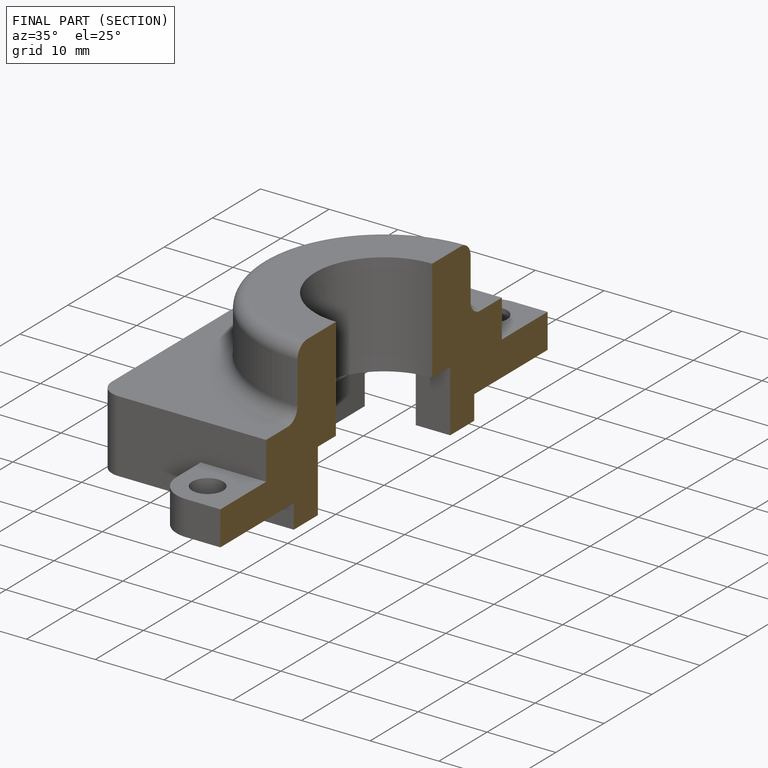
[diagram: finished part — half-section view (interior)]
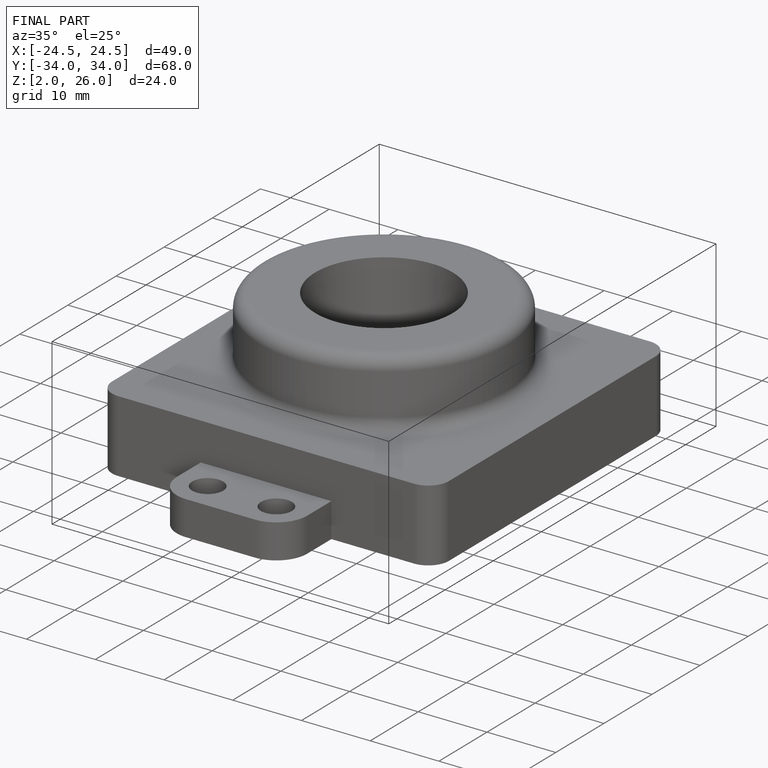
[diagram: finished part — iso view with bounding-box wireframe]
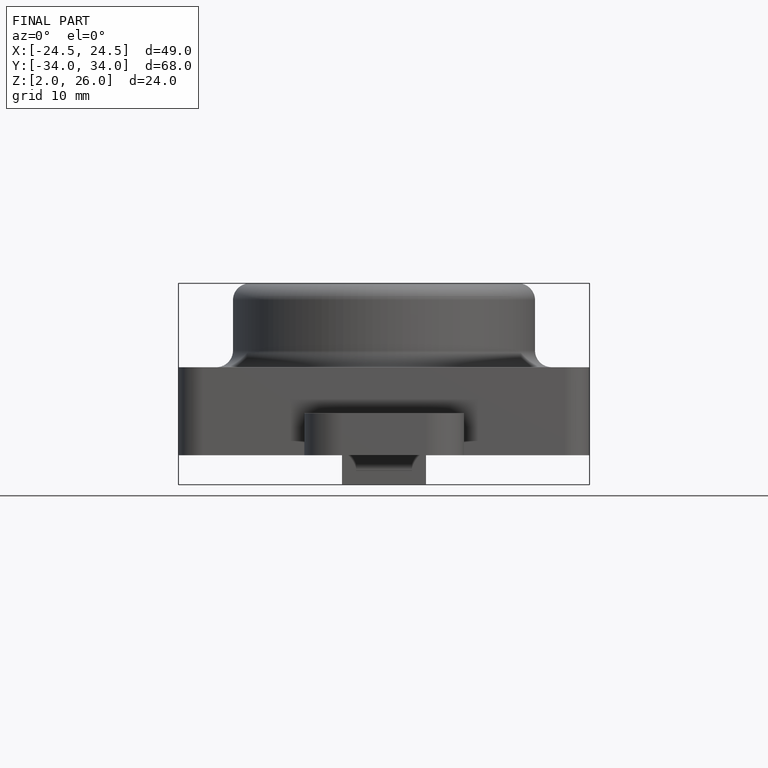
[diagram: finished part — front view with bounding-box wireframe]
